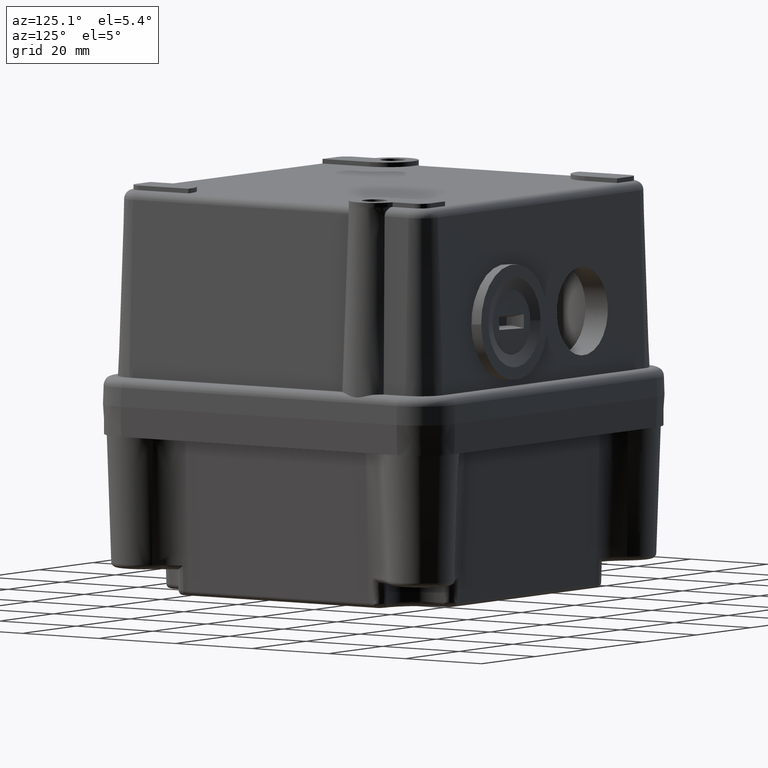
[diagram: clean part render]
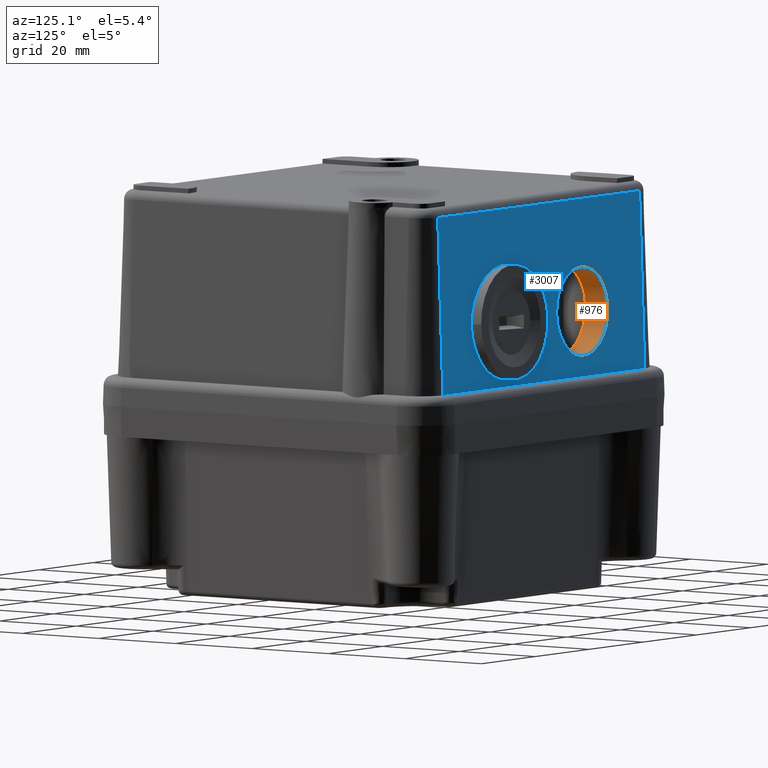
[diagram: same view with the hole feature highlighted: cylindrical wall and planar end face, labeled with their STEP entity ids]
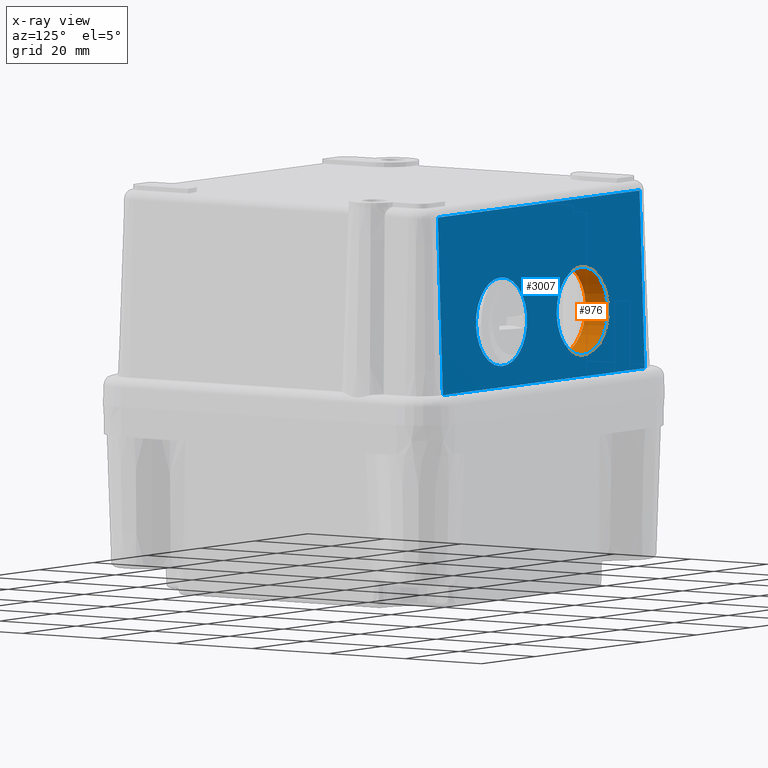
[diagram: x-ray of the same camera — body ghosted, the hole faces saturated]
A machine part, auxiliary view. The highlighted faces form one hole feature of diameter 19 mm: the cylindrical wall (entity #976, orange) and its adjacent planar end face (entity #3007, blue) — they share a circular edge in the B-rep.
The next image is the same camera in x-ray (body ghosted, the hole faces saturated) — the bore reads through the body.
Wall:
#949=CARTESIAN_POINT('',(16.385091562884369,59.401469438650913,19.991471578267351));
#950=DIRECTION('',(0.0,-0.999390827019096,-0.034899496702501));
#951=DIRECTION('',(-1.0,0.0,0.0));
#952=AXIS2_PLACEMENT_3D('',#949,#950,#951);
#953=CYLINDRICAL_SURFACE('',#952,9.500000000000000);
#954=CARTESIAN_POINT('',(16.385091562884373,53.599587009446452,29.294656050177686));
#955=VERTEX_POINT('',#954);
#956=CARTESIAN_POINT('',(16.385091562884369,53.599587009446452,19.788865379338880));
#957=DIRECTION('',(0.0,1.0,0.0));
#958=DIRECTION('',(0.0,0.0,-1.0));
#959=AXIS2_PLACEMENT_3D('',#956,#957,#958);
#960=ELLIPSE('',#959,9.505790670838808,9.500000000000002);
#961=EDGE_CURVE('',#955,#955,#960,.T.);
#962=ORIENTED_EDGE('',*,*,#961,.F.);
#963=EDGE_LOOP('',(#962));
#964=FACE_OUTER_BOUND('',#963,.T.);
#965=CARTESIAN_POINT('',(25.885091562884369,59.401469438650913,19.991471578267348));
#966=VERTEX_POINT('',#965);
#967=CARTESIAN_POINT('',(16.385091562884369,59.401469438650913,19.991471578267351));
#968=DIRECTION('',(0.0,-0.999390827019096,-0.034899496702501));
#969=DIRECTION('',(-1.0,0.0,0.0));
#970=AXIS2_PLACEMENT_3D('',#967,#968,#969);
#971=CIRCLE('',#970,9.500000000000000);
#972=EDGE_CURVE('',#966,#966,#971,.T.);
#973=ORIENTED_EDGE('',*,*,#972,.F.);
#974=EDGE_LOOP('',(#973));
#975=FACE_BOUND('',#974,.T.);
#976=ADVANCED_FACE('',(#964,#975),#953,.F.);
End face:
#965=CARTESIAN_POINT('',(25.885091562884369,59.401469438650913,19.991471578267348));
#966=VERTEX_POINT('',#965);
#967=CARTESIAN_POINT('',(16.385091562884369,59.401469438650913,19.991471578267351));
#968=DIRECTION('',(0.0,-0.999390827019096,-0.034899496702501));
#969=DIRECTION('',(-1.0,0.0,0.0));
#970=AXIS2_PLACEMENT_3D('',#967,#968,#969);
#971=CIRCLE('',#970,9.500000000000000);
#972=EDGE_CURVE('',#966,#966,#971,.T.);
#993=CARTESIAN_POINT('',(55.885091562884377,59.401469438650913,19.991471578267351));
#994=VERTEX_POINT('',#993);
#995=CARTESIAN_POINT('',(46.385091562884369,59.401469438650913,19.991471578267355));
#996=DIRECTION('',(0.0,-0.999390827019096,-0.034899496702501));
#997=DIRECTION('',(-1.0,0.0,0.0));
#998=AXIS2_PLACEMENT_3D('',#995,#996,#997);
#999=CIRCLE('',#998,9.500000000000000);
#1000=EDGE_CURVE('',#994,#994,#999,.T.);
#2502=CARTESIAN_POINT('',(-6.114908437115638,58.560635717240061,44.069798993405001));
#2503=VERTEX_POINT('',#2502);
#2528=CARTESIAN_POINT('',(68.885091562884469,58.560635717240061,44.069798993405001));
#2529=VERTEX_POINT('',#2528);
#2537=CARTESIAN_POINT('',(68.885091562884469,58.560635717240061,44.069798993405001));
#2538=DIRECTION('',(-1.0,0.0,0.0));
#2539=VECTOR('',#2538,75.000000000000114);
#2540=LINE('',#2537,#2539);
#2541=EDGE_CURVE('',#2529,#2503,#2540,.T.);
#2960=CARTESIAN_POINT('',(68.885091562884469,59.890062392485923,6.000000000000014));
#2961=VERTEX_POINT('',#2960);
#2969=CARTESIAN_POINT('',(68.885091562884469,58.560635717240061,44.069798993405001));
#2970=DIRECTION('',(0.0,0.034899496702501,-0.999390827019096));
#2971=VECTOR('',#2970,38.093004222338706);
#2972=LINE('',#2969,#2971);
#2973=EDGE_CURVE('',#2529,#2961,#2972,.T.);
#2978=CARTESIAN_POINT('',(68.885091562884469,58.493231612816018,46.000000000000007));
#2979=DIRECTION('',(0.0,0.999390827019096,0.034899496702501));
#2980=DIRECTION('',(1.0,0.0,0.0));
#2981=AXIS2_PLACEMENT_3D('',#2978,#2979,#2980);
#2982=PLANE('',#2981);
#2983=ORIENTED_EDGE('',*,*,#2541,.F.);
#2984=ORIENTED_EDGE('',*,*,#2973,.T.);
#2985=CARTESIAN_POINT('',(-6.114908437115638,59.890062392485966,6.000000000000014));
#2986=VERTEX_POINT('',#2985);
#2987=CARTESIAN_POINT('',(68.885091562884469,59.890062392485923,6.000000000000014));
#2988=DIRECTION('',(-1.0,0.0,0.0));
#2989=VECTOR('',#2988,75.000000000000114);
#2990=LINE('',#2987,#2989);
#2991=EDGE_CURVE('',#2961,#2986,#2990,.T.);
#2992=ORIENTED_EDGE('',*,*,#2991,.T.);
#2993=CARTESIAN_POINT('',(-6.114908437115638,58.560635717240061,44.069798993405001));
#2994=DIRECTION('',(0.0,0.034899496702502,-0.999390827019096));
#2995=VECTOR('',#2994,38.093004222338713);
#2996=LINE('',#2993,#2995);
#2997=EDGE_CURVE('',#2503,#2986,#2996,.T.);
#2998=ORIENTED_EDGE('',*,*,#2997,.F.);
#2999=EDGE_LOOP('',(#2983,#2984,#2992,#2998));
#3000=FACE_OUTER_BOUND('',#2999,.T.);
#3001=ORIENTED_EDGE('',*,*,#972,.T.);
#3002=EDGE_LOOP('',(#3001));
#3003=FACE_BOUND('',#3002,.T.);
#3004=ORIENTED_EDGE('',*,*,#1000,.T.);
#3005=EDGE_LOOP('',(#3004));
#3006=FACE_BOUND('',#3005,.T.);
#3007=ADVANCED_FACE('',(#3000,#3003,#3006),#2982,.T.);